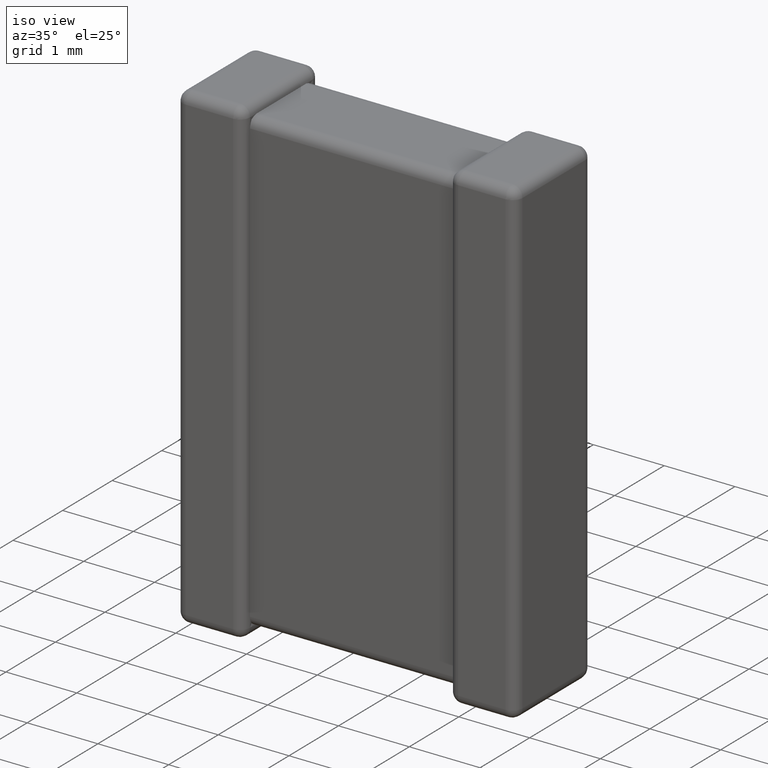
[diagram: clean part render]
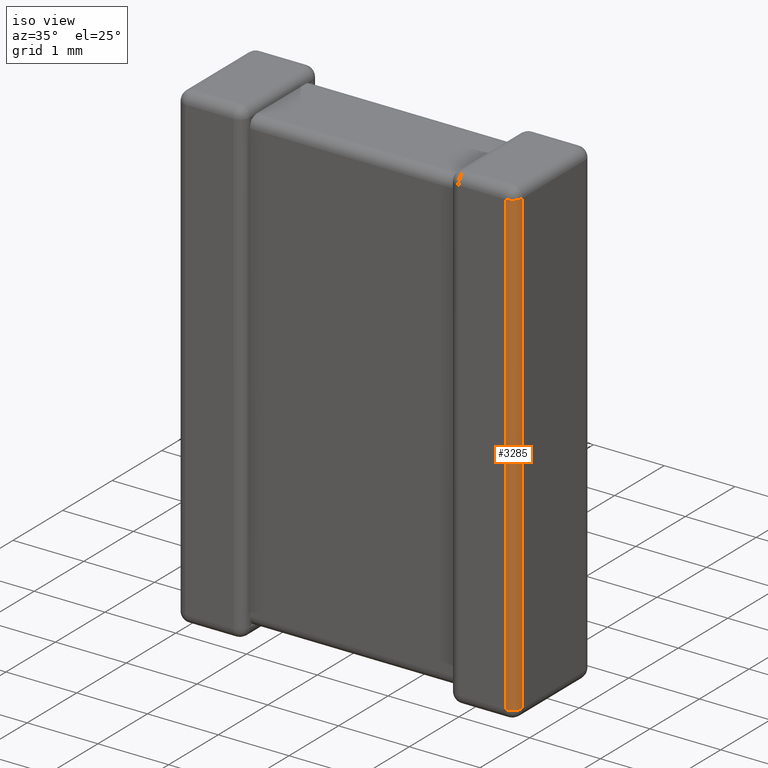
[diagram: same view with one face highlighted and labeled with its STEP entity id]
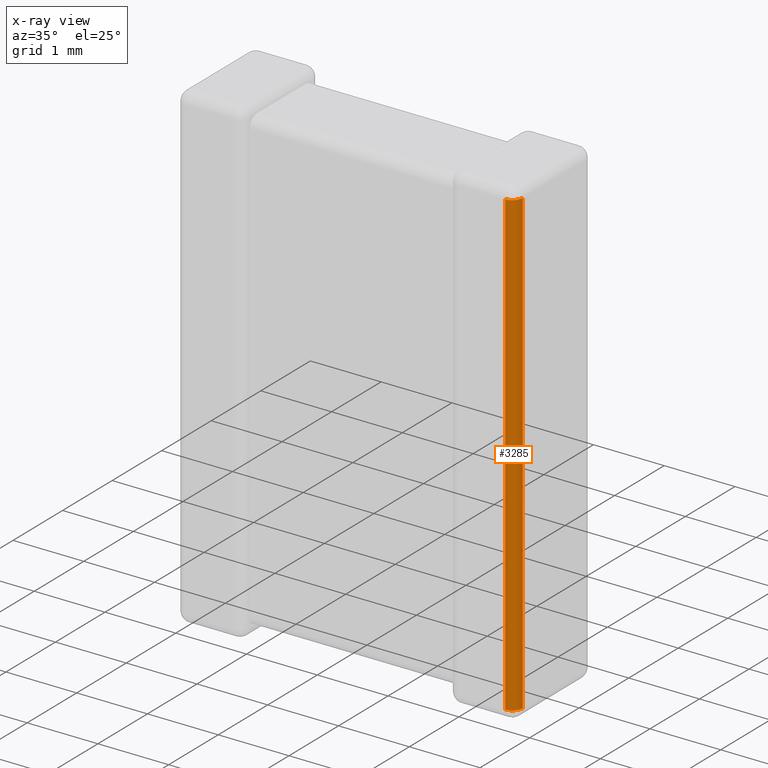
[diagram: x-ray of the same camera — body ghosted, the highlighted face saturated]
A machine part, iso view. The second image highlights one B-rep face of the part: STEP entity #3285.
The next image is the same camera in x-ray: the body ghosted, the highlighted face saturated — about 0% of this face is hidden behind the body in this view.
In plain terms, the highlighted cylindrical surface (edge-blend (fillet) strip) has radius 0.1414 mm, axis along (0, 0, -1).
Its self-contained STEP definition (entity closure, byte-faithful):
#5 = VERTEX_POINT ( 'NONE', #3851 ) ;
#52 = CARTESIAN_POINT ( 'NONE',  ( 4.658559999999999600, 0.0000000000000000000, -6.658560000000000500 ) ) ;
#59 = DIRECTION ( 'NONE',  ( 1.000000000000000000, 0.0000000000000000000, 0.0000000000000000000 ) ) ;
#468 = VECTOR ( 'NONE', #703, 1000.000000000000000 ) ;
#483 = DIRECTION ( 'NONE',  ( 0.0000000000000000000, 0.0000000000000000000, -1.000000000000000000 ) ) ;
#490 = CARTESIAN_POINT ( 'NONE',  ( 4.799999999999999800, 0.1414400000000000100, -6.658560000000000500 ) ) ;
#601 = EDGE_CURVE ( 'NONE', #1289, #1804, #1330, .T. ) ;
#703 = DIRECTION ( 'NONE',  ( 0.0000000000000000000, 0.0000000000000000000, -1.000000000000000000 ) ) ;
#749 = EDGE_LOOP ( 'NONE', ( #2685, #2630, #4101, #3934 ) ) ;
#773 = CARTESIAN_POINT ( 'NONE',  ( 4.658559999999999600, 0.1414400000000000100, -6.658560000000000500 ) ) ;
#791 = CARTESIAN_POINT ( 'NONE',  ( 4.658559999999999600, 0.1414400000000000100, -0.1414400000000000100 ) ) ;
#968 = EDGE_CURVE ( 'NONE', #1740, #1289, #3682, .T. ) ;
#1134 = LINE ( 'NONE', #3540, #1529 ) ;
#1289 = VERTEX_POINT ( 'NONE', #490 ) ;
#1330 = CIRCLE ( 'NONE', #4548, 0.1414399999999996200 ) ;
#1416 = CIRCLE ( 'NONE', #4010, 0.1414399999999996200 ) ;
#1529 = VECTOR ( 'NONE', #4618, 1000.000000000000000 ) ;
#1740 = VERTEX_POINT ( 'NONE', #4307 ) ;
#1804 = VERTEX_POINT ( 'NONE', #52 ) ;
#1863 = DIRECTION ( 'NONE',  ( -0.0000000000000000000, 0.0000000000000000000, 1.000000000000000000 ) ) ;
#2245 = CYLINDRICAL_SURFACE ( 'NONE', #3714, 0.1414399999999996200 ) ;
#2253 = CARTESIAN_POINT ( 'NONE',  ( 4.658559999999999600, 0.1414400000000000100, 0.0000000000000000000 ) ) ;
#2275 = EDGE_CURVE ( 'NONE', #5, #1740, #1416, .T. ) ;
#2485 = CARTESIAN_POINT ( 'NONE',  ( 4.799999999999999800, 0.1414400000000000100, 0.0000000000000000000 ) ) ;
#2582 = DIRECTION ( 'NONE',  ( -1.000000000000000000, 0.0000000000000000000, 0.0000000000000000000 ) ) ;
#2630 = ORIENTED_EDGE ( 'NONE', *, *, #3019, .F. ) ;
#2685 = ORIENTED_EDGE ( 'NONE', *, *, #2275, .F. ) ;
#2867 = FACE_OUTER_BOUND ( 'NONE', #749, .T. ) ;
#3019 = EDGE_CURVE ( 'NONE', #1804, #5, #1134, .T. ) ;
#3285 = ADVANCED_FACE ( 'NONE', ( #2867 ), #2245, .T. ) ;
#3540 = CARTESIAN_POINT ( 'NONE',  ( 4.658559999999999600, 0.0000000000000000000, 0.0000000000000000000 ) ) ;
#3682 = LINE ( 'NONE', #2485, #468 ) ;
#3714 = AXIS2_PLACEMENT_3D ( 'NONE', #2253, #483, #4454 ) ;
#3851 = CARTESIAN_POINT ( 'NONE',  ( 4.658559999999999600, 0.0000000000000000000, -0.1414400000000000100 ) ) ;
#3934 = ORIENTED_EDGE ( 'NONE', *, *, #968, .F. ) ;
#4010 = AXIS2_PLACEMENT_3D ( 'NONE', #791, #1863, #59 ) ;
#4101 = ORIENTED_EDGE ( 'NONE', *, *, #601, .F. ) ;
#4307 = CARTESIAN_POINT ( 'NONE',  ( 4.799999999999999800, 0.1414400000000000100, -0.1414400000000000100 ) ) ;
#4341 = DIRECTION ( 'NONE',  ( 0.0000000000000000000, 0.0000000000000000000, -1.000000000000000000 ) ) ;
#4454 = DIRECTION ( 'NONE',  ( -1.000000000000000000, 0.0000000000000000000, 0.0000000000000000000 ) ) ;
#4548 = AXIS2_PLACEMENT_3D ( 'NONE', #773, #4341, #2582 ) ;
#4618 = DIRECTION ( 'NONE',  ( -0.0000000000000000000, -0.0000000000000000000, 1.000000000000000000 ) ) ;